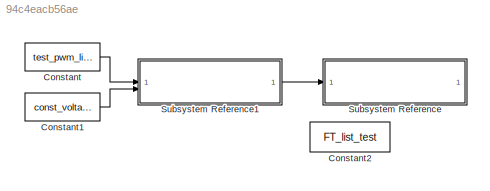
MODEL slx_94c4eacb56ae
KIND model
CONFIG AbsTol = abs_tol
CONFIG EnableMultiTasking = off
CONFIG FixedStep = dt_sim
CONFIG MaxStep = auto
CONFIG MinStep = auto
CONFIG RelTol = rel_tol
CONFIG SampleTimeConstraint = Unconstrained
CONFIG SolverName = FixedStepAuto
CONFIG StartTime = 0.0
CONFIG StopTime = 1
BLOCK [Constant] Constant
  NameLocation = top
  Value = test_pwm_list
BLOCK [Constant] Constant1
  NameLocation = top
  Value = const_voltage
BLOCK [Constant] Constant2
  Value = FT_list_test
BLOCK [SubSystem] Subsystem Reference
  ReferencedSubsystem = plant
BLOCK [SubSystem] Subsystem Reference1
  NameLocation = top
  ReferencedSubsystem = pwm_to_force
LINE Constant1:1 -> Subsystem Reference1:2
LINE Constant:1 -> Subsystem Reference1:1
LINE Subsystem Reference1:1 -> Subsystem Reference:1
